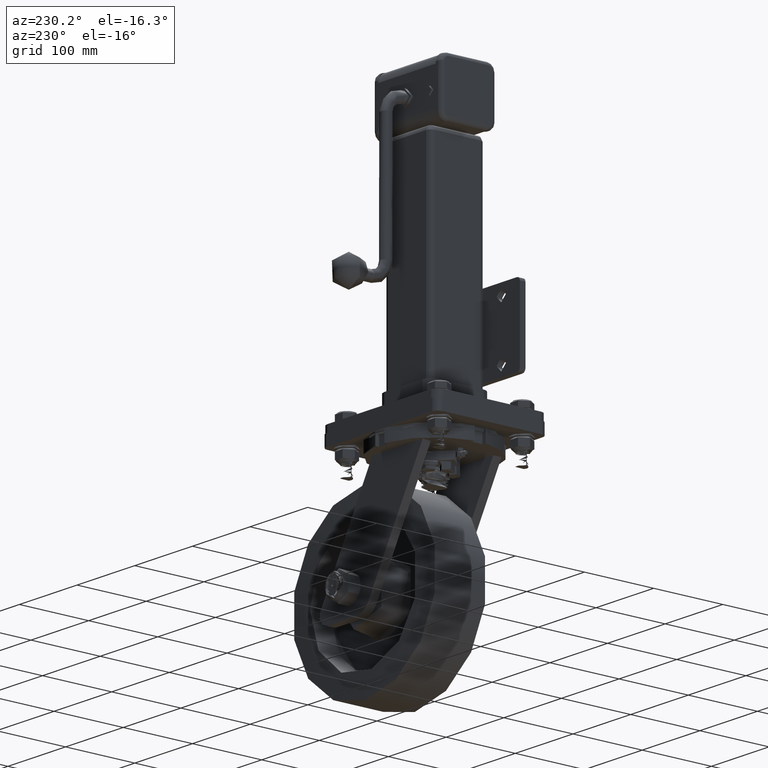
[diagram: clean part render]
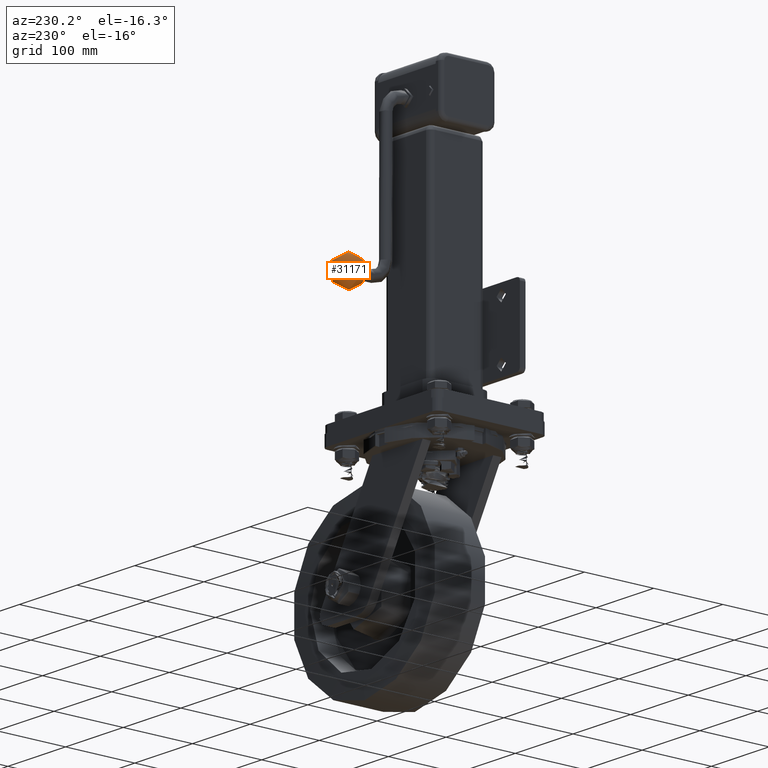
[diagram: same view with one face highlighted and labeled with its STEP entity id]
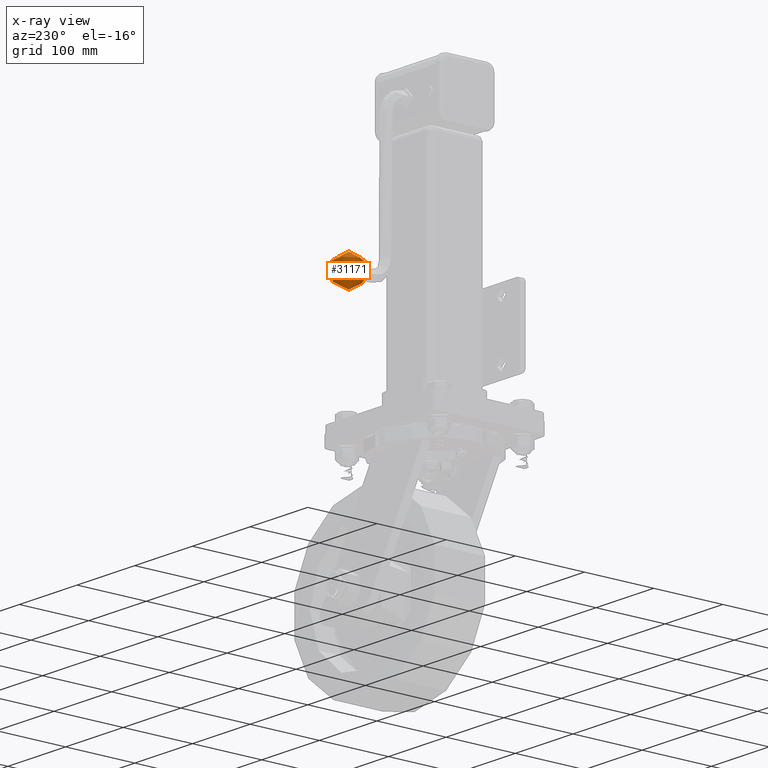
[diagram: x-ray of the same camera — body ghosted, the highlighted face saturated]
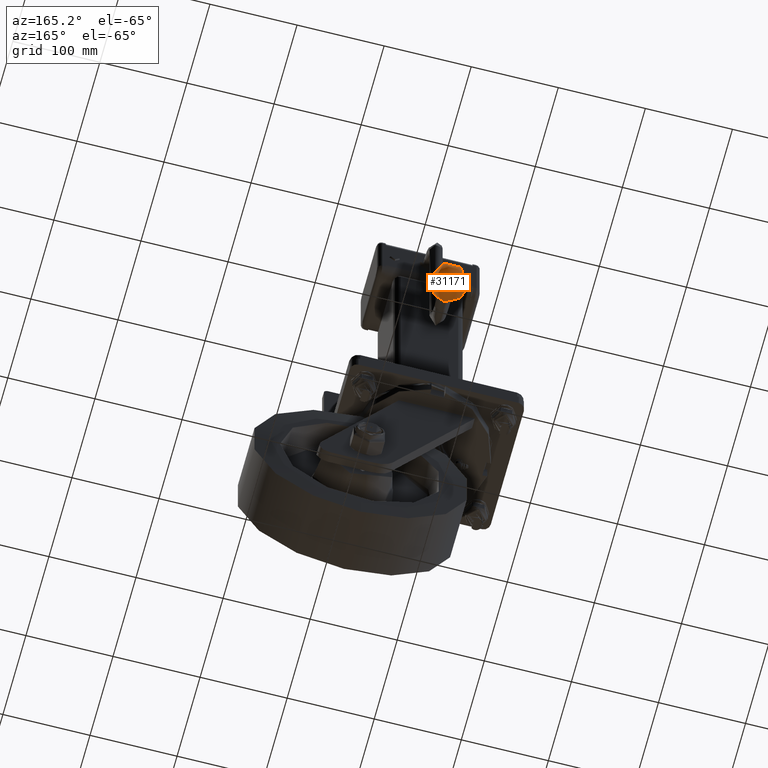
[diagram: same view with one face highlighted and labeled with its STEP entity id]
A machine part, auxiliary view. The second image highlights one B-rep face of the part: STEP entity #31171.
The next image is the same camera in x-ray: the body ghosted, the highlighted face saturated — about 0% of this face is hidden behind the body in this view.
A second angle (auxiliary view) of the same face is appended — the face is thin or edge-on in the first view.
In plain terms, the highlighted spherical surface has radius 22 mm.
Its self-contained STEP definition (entity closure, byte-faithful):
#513=SPHERICAL_SURFACE('',#34300,22.);
#979=FACE_BOUND('',#6438,.T.);
#2801=CIRCLE('',#34301,22.);
#2802=CIRCLE('',#34302,11.0905365064093);
#4420=FACE_OUTER_BOUND('',#6437,.T.);
#6437=EDGE_LOOP('',(#24369,#24370));
#6438=EDGE_LOOP('',(#24371));
#13879=VERTEX_POINT('',#64822);
#13880=VERTEX_POINT('',#64823);
#13881=VERTEX_POINT('',#64825);
#17592=EDGE_CURVE('',#13879,#13880,#2801,.T.);
#17593=EDGE_CURVE('',#13881,#13881,#2802,.T.);
#24369=ORIENTED_EDGE('',*,*,#17592,.T.);
#24370=ORIENTED_EDGE('',*,*,#17592,.F.);
#24371=ORIENTED_EDGE('',*,*,#17593,.T.);
#31171=ADVANCED_FACE('',(#4420,#979),#513,.T.);
#34300=AXIS2_PLACEMENT_3D('',#64821,#39908,#39909);
#34301=AXIS2_PLACEMENT_3D('',#64824,#39910,#39911);
#34302=AXIS2_PLACEMENT_3D('',#64826,#39912,#39913);
#39908=DIRECTION('center_axis',(6.12323399573677E-17,0.,1.));
#39909=DIRECTION('ref_axis',(1.,0.,0.));
#39910=DIRECTION('center_axis',(0.,-1.,0.));
#39911=DIRECTION('ref_axis',(-1.,0.,0.));
#39912=DIRECTION('center_axis',(0.,1.,-1.46177549743702E-15));
#39913=DIRECTION('ref_axis',(0.,1.46177549743702E-15,1.));
#64821=CARTESIAN_POINT('Origin',(0.,123.999999999999,144.));
#64822=CARTESIAN_POINT('',(-1.34711147906209E-15,123.999999999999,166.));
#64823=CARTESIAN_POINT('',(-1.34711147906209E-15,123.999999999999,122.));
#64824=CARTESIAN_POINT('Origin',(0.,123.999999999999,144.));
#64825=CARTESIAN_POINT('',(1.3581990033401E-15,104.999999999999,132.909463493591));
#64826=CARTESIAN_POINT('Origin',(0.,104.999999999999,144.));